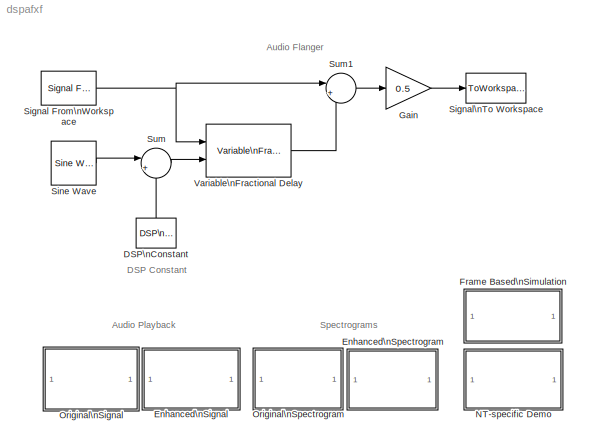
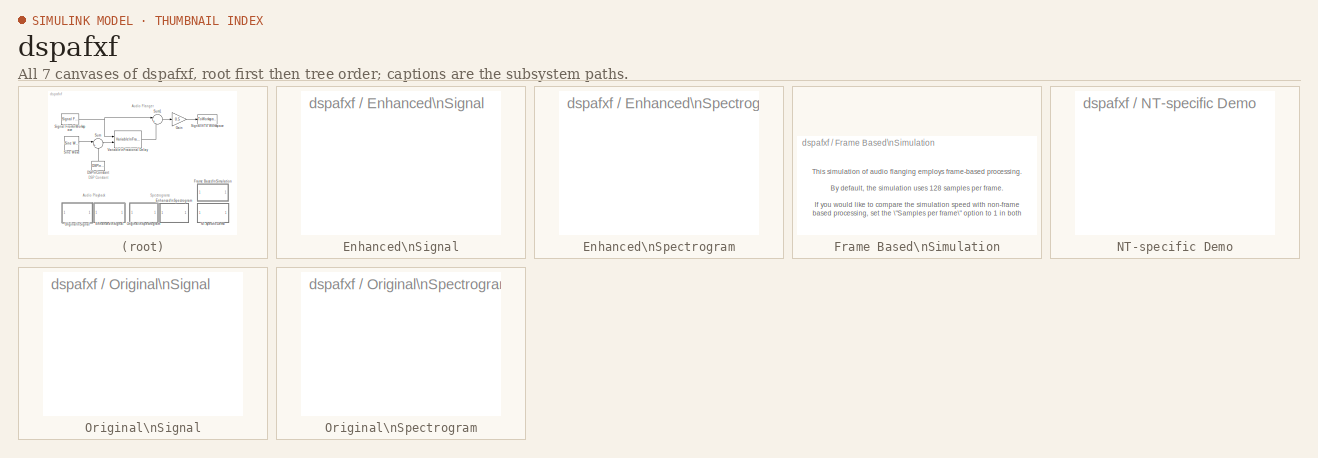
[diagram: thumbnail index - all 7 canvases of the model, root first then tree order]
MODEL dspafxf
KIND model
CONFIG AbsTol = auto
CONFIG FixedStep = auto
CONFIG MaxStep = auto
CONFIG MinStep = auto
CONFIG PreLoadFcn = load dspafxf;
CONFIG RelTol = 1e-3
CONFIG Solver = FixedStepDiscrete
CONFIG SolverMode = Auto
CONFIG StartTime = 0.0
CONFIG StopTime = 3.928
BLOCK [Reference] DSP\nConstant  REF=dspsrcs4/DSP\nConstant
  FramebasedOutput = off
  InterpretAs1D = on
  Ports = [0, 1]
  SampleMode = Discrete
  ShowPortLabels = on
  SourceBlock = dspsrcs4/DSP\nConstant
  SourceType = DSP Constant
  Ts = 128/fs_afxf
  Value = 20
  additionalParams = off
  allowOverrides = on
  continuousOutput = Sample-based
  dataType = Inherit from 'Constant value'
  discreteOutput = Sample-based (interpret vectors as 1-D)
  fracBitsMode = Best precision
  framePeriod = 128/fs_afxf
  numFracBits = 15
  sampTime = 128/fs_afxf
  udDataType = sfix(16)
  wordLen = 16
BLOCK [SubSystem] Enhanced\nSignal
  MaskDisplay = disp('Enhanced\\nSignal')
  MaskIconFrame = on
  MaskIconOpaque = on
  MaskIconRotate = none
  MaskIconUnits = autoscale
  OpenFcn = if exist('y_afxf','var') & exist('fs_afxf','var'), sound(squeeze(y_afxf),fs_afxf); else errordlg('You must run the simulation first.','Signal Processing Blockset Demo Error'); end
  Ports = []
  TreatAsAtomicUnit = off
BLOCK [SubSystem] Enhanced\nSpectrogram
  MaskDisplay = disp('Enhanced\\nSignal')
  MaskIconFrame = on
  MaskIconOpaque = on
  MaskIconRotate = none
  MaskIconUnits = autoscale
  OpenFcn = if exist('y_afxf','var') & exist('fs_afxf','var'), figure;specgram(y_afxf,[],fs_afxf);colormap(bone);colorbar; else errordlg('You must run the simulation first.','Signal Processing Blockset Demo Error'); end
  Ports = []
  TreatAsAtomicUnit = off
BLOCK [SubSystem] Frame Based\nSimulation
  MaskDisplay = disp('Info')
  MaskIconFrame = on
  MaskIconOpaque = on
  MaskIconRotate = none
  MaskIconUnits = autoscale
  MaskType = Frame-Based Simulation Info
  Ports = []
  TreatAsAtomicUnit = off
BLOCK [Gain] Gain
  Gain = 0.5
BLOCK [SubSystem] NT-specific Demo
  MaskDisplay = disp('PC/Windows\\nDemo')
  MaskIconFrame = on
  MaskIconOpaque = on
  MaskIconRotate = none
  MaskIconUnits = autoscale
  MaskType = NT-only Demo
  OpenFcn = dspafxf_win32
  Ports = []
  TreatAsAtomicUnit = off
BLOCK [SubSystem] Original\nSignal
  MaskDisplay = disp('Original\\nSignal')
  MaskIconFrame = on
  MaskIconOpaque = on
  MaskIconRotate = none
  MaskIconUnits = autoscale
  MaskType = Original Signal
  OpenFcn = if exist('x_afxf','var') & exist('fs_afxf','var'), sound(x_afxf,fs_afxf); else errordlg('Data not found in workspace - reload demo model.','Signal Processing Blockset Demo Error'); end
  Ports = []
  TreatAsAtomicUnit = off
BLOCK [SubSystem] Original\nSpectrogram
  MaskDisplay = disp('Original\\nSignal')
  MaskIconFrame = on
  MaskIconOpaque = on
  MaskIconRotate = none
  MaskIconUnits = autoscale
  OpenFcn = if exist('x_afxf','var') & exist('fs_afxf','var'), figure;specgram(x_afxf,[],fs_afxf);colormap(bone);colorbar; else errordlg('Data not found in workspace - reload demo model.','Signal Processing Blockset Demo Error'); end
  Ports = []
  TreatAsAtomicUnit = off
BLOCK [Reference] Signal From\nWorkspace  REF=dspsrcs4/Signal From\nWorkspace
  OutputAfterFinalValue = Setting to zero
  Ports = [0, 1]
  ShowPortLabels = on
  SourceBlock = dspsrcs4/Signal From\nWorkspace
  SourceType = Signal From Workspace
  Ts = 1/fs_afxf
  X = x_afxf
  nsamps = 128
BLOCK [ToWorkspace] Signal\nTo Workspace
  MaxDataPoints = inf
  SampleTime = -1
  SaveFormat = Array
  VariableName = y_afxf
BLOCK [Reference] Sine Wave  REF=dspsrcs4/Sine Wave
  Amplitude = 15
  CompMethod = Trigonometric fcn
  Frequency = 1/3.934
  OutComplex = Real
  Phase = pi/4
  Ports = [0, 1]
  ResetState = Restart at time zero
  SampleMode = Discrete
  SampleTime = 1/fs_afxf
  SamplesPerFrame = 128
  SourceBlock = dspsrcs4/Sine Wave
  SourceType = Sine Wave
  TableSize = Speed
  additionalParams = off
  allowOverrides = on
  dataType = double
  fracBitsMode = Best precision
  numFracBits = 15
  udDataType = sfix(16)
  wordLen = 16
BLOCK [Sum] Sum
  IconShape = round
  Inputs = |++
  Ports = [2, 1]
BLOCK [Sum] Sum1
  IconShape = round
  Inputs = |++
  Ports = [2, 1]
BLOCK [Reference] Variable\nFractional Delay  REF=dspsigops/Variable\nFractional Delay
  L = 8
  Ports = [2, 1]
  R = 10
  SourceBlock = dspsigops/Variable\nFractional Delay
  SourceType = Variable Fractional Delay
  alpha = 0.5
  dmax = 100
  ic = 0
  mode = FIR Interpolation
ANNOTATION (root): Audio Flanger
ANNOTATION (root): DSP Constant
ANNOTATION (root): \n Spectrograms\n
ANNOTATION (root): \n Audio Playback\n
ANNOTATION Frame Based\nSimulation: This simulation of audio flanging employs frame-based processing.\n\nBy default, the simulation uses 128 samples per frame.\n\nIf you would like to compare the simulation speed with non-frame\nbased processing, set the \"Samples per frame\" option to 1 in both\nthe \"Signal From Workspace\" and \"Sine Wave\" blocks and set\n\"Sample time\" option to 1/fs_afxf in \"DSP Constant\" block.
LINE DSP\nConstant:1 -> Sum:2
LINE Gain:1 -> Signal\nTo Workspace:1
NET Signal From\nWorkspace:1 -> Sum1:1, Variable\nFractional Delay:1
LINE Sine Wave:1 -> Sum:1
LINE Sum1:1 -> Gain:1
LINE Sum:1 -> Variable\nFractional Delay:2
LINE Variable\nFractional Delay:1 -> Sum1:2
note: NET lines group one-source signal fan-out (src -> all destinations, sorted); 1:1 wires keep LINE
